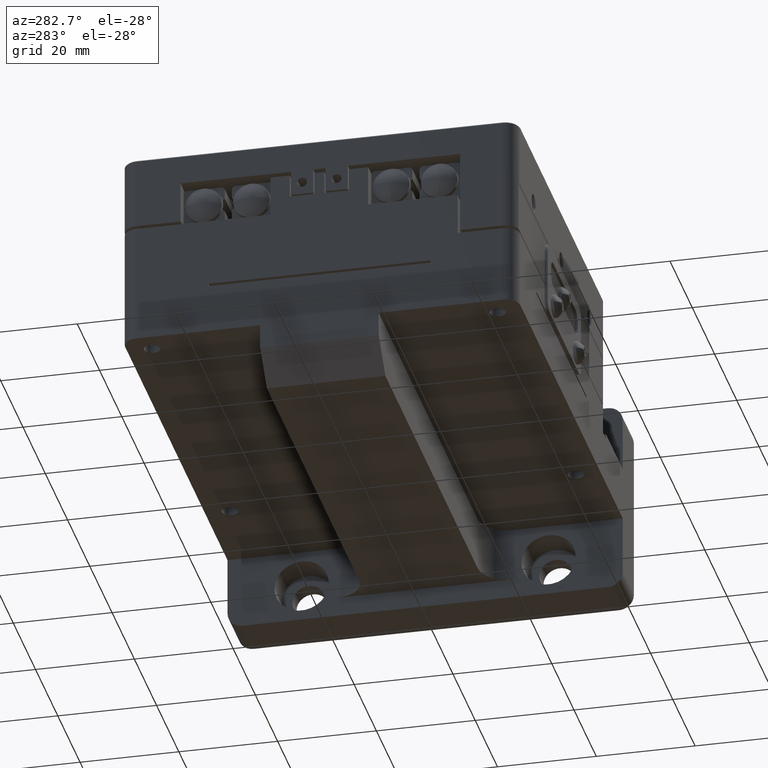
[diagram: clean part render]
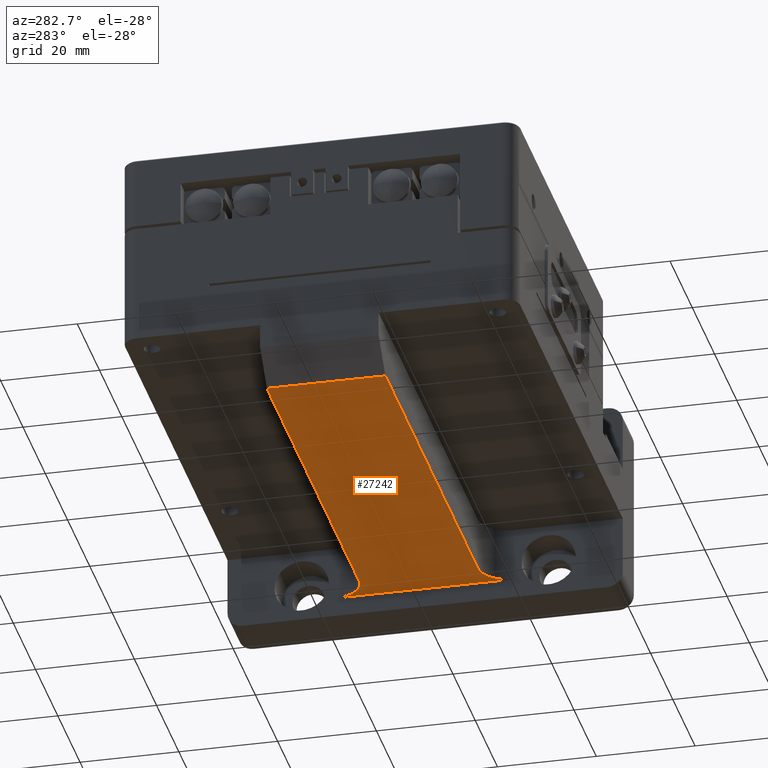
[diagram: same view with one face highlighted and labeled with its STEP entity id]
A machine part, auxiliary view. The second image highlights one B-rep face of the part: STEP entity #27242.
In plain terms, the highlighted planar face has unit normal (-0, 0, 1).
Its self-contained STEP definition (entity closure, byte-faithful):
#635 = AXIS2_PLACEMENT_3D ( 'NONE', #11361, #3087, #19629 ) ;
#2666 = ORIENTED_EDGE ( 'NONE', *, *, #13429, .T. ) ;
#3087 = DIRECTION ( 'NONE',  ( 1.000000000000000000, 2.312964634635740985E-16, -0.000000000000000000 ) ) ;
#3495 = DIRECTION ( 'NONE',  ( 1.000000000000000000, 2.312964634635740985E-16, -0.000000000000000000 ) ) ;
#4759 = DIRECTION ( 'NONE',  ( 1.000000000000000000, 1.460819769243627624E-16, -0.000000000000000000 ) ) ;
#5053 = ORIENTED_EDGE ( 'NONE', *, *, #39371, .T. ) ;
#6030 = LINE ( 'NONE', #52116, #53743 ) ;
#6084 = VERTEX_POINT ( 'NONE', #48886 ) ;
#6743 = LINE ( 'NONE', #27418, #9144 ) ;
#7143 = VERTEX_POINT ( 'NONE', #35405 ) ;
#7940 = VERTEX_POINT ( 'NONE', #30851 ) ;
#8560 = DIRECTION ( 'NONE',  ( -0.000000000000000000, 0.000000000000000000, 1.000000000000000000 ) ) ;
#8903 = FACE_OUTER_BOUND ( 'NONE', #12921, .T. ) ;
#9144 = VECTOR ( 'NONE', #23290, 1000.000000000000000 ) ;
#10091 = VERTEX_POINT ( 'NONE', #52713 ) ;
#10767 = EDGE_CURVE ( 'NONE', #10091, #39506, #52326, .T. ) ;
#11361 = CARTESIAN_POINT ( 'NONE',  ( -16.00000000000000000, 16.00000000000000711, 18.00000000000000711 ) ) ;
#12921 = EDGE_LOOP ( 'NONE', ( #20555, #24731, #2666, #5053, #36713, #45081 ) ) ;
#13429 = EDGE_CURVE ( 'NONE', #7143, #7940, #21724, .T. ) ;
#14266 = DIRECTION ( 'NONE',  ( 0.000000000000000000, -0.000000000000000000, -1.000000000000000000 ) ) ;
#14793 = CARTESIAN_POINT ( 'NONE',  ( -16.00000000000001421, 98.99999999999994316, 40.00000000000000000 ) ) ;
#15995 = EDGE_CURVE ( 'NONE', #21296, #10091, #6030, .T. ) ;
#19079 = EDGE_CURVE ( 'NONE', #6084, #21296, #44641, .T. ) ;
#19629 = DIRECTION ( 'NONE',  ( 0.000000000000000000, -1.000000000000000000, 0.000000000000000000 ) ) ;
#20555 = ORIENTED_EDGE ( 'NONE', *, *, #10767, .T. ) ;
#21296 = VERTEX_POINT ( 'NONE', #22188 ) ;
#21579 = DIRECTION ( 'NONE',  ( -1.460819769243627624E-16, 1.000000000000000000, 0.000000000000000000 ) ) ;
#21724 = CIRCLE ( 'NONE', #53441, 6.000000000000000000 ) ;
#22015 = VECTOR ( 'NONE', #14266, 1000.000000000000000 ) ;
#22188 = CARTESIAN_POINT ( 'NONE',  ( -16.00000000000000000, 16.00000000000002487, 12.00000000000000000 ) ) ;
#23027 = VECTOR ( 'NONE', #8560, 1000.000000000000000 ) ;
#23290 = DIRECTION ( 'NONE',  ( 0.000000000000000000, -1.000000000000000000, -0.000000000000000000 ) ) ;
#24731 = ORIENTED_EDGE ( 'NONE', *, *, #50420, .T. ) ;
#27242 = ADVANCED_FACE ( 'NONE', ( #8903 ), #42542, .F. ) ;
#27418 = CARTESIAN_POINT ( 'NONE',  ( -16.00000000000001421, 0.000000000000000000, -12.00000000000000000 ) ) ;
#30574 = DIRECTION ( 'NONE',  ( 0.000000000000000000, 1.000000000000000000, 0.000000000000000000 ) ) ;
#30851 = CARTESIAN_POINT ( 'NONE',  ( -16.00000000000000000, 10.00000000000000888, -18.00000000000000711 ) ) ;
#33384 = LINE ( 'NONE', #46884, #23027 ) ;
#35405 = CARTESIAN_POINT ( 'NONE',  ( -16.00000000000000711, 16.00000000000000711, -12.00000000000000000 ) ) ;
#36713 = ORIENTED_EDGE ( 'NONE', *, *, #19079, .T. ) ;
#37324 = CARTESIAN_POINT ( 'NONE',  ( -16.00000000000001421, 105.0000000000000000, -30.00000000000000000 ) ) ;
#39371 = EDGE_CURVE ( 'NONE', #7940, #6084, #33384, .T. ) ;
#39506 = VERTEX_POINT ( 'NONE', #48520 ) ;
#42542 = PLANE ( 'NONE',  #48912 ) ;
#44641 = CIRCLE ( 'NONE', #635, 6.000000000000000000 ) ;
#45081 = ORIENTED_EDGE ( 'NONE', *, *, #15995, .T. ) ;
#45151 = DIRECTION ( 'NONE',  ( 0.000000000000000000, -1.000000000000000000, 0.000000000000000000 ) ) ;
#46884 = CARTESIAN_POINT ( 'NONE',  ( -16.00000000000000000, 10.00000000000000888, 12.00000000000000000 ) ) ;
#48520 = CARTESIAN_POINT ( 'NONE',  ( -16.00000000000001066, 98.99999999999995737, -12.00000000000000178 ) ) ;
#48886 = CARTESIAN_POINT ( 'NONE',  ( -16.00000000000000000, 10.00000000000000888, 18.00000000000000711 ) ) ;
#48912 = AXIS2_PLACEMENT_3D ( 'NONE', #37324, #4759, #21579 ) ;
#50420 = EDGE_CURVE ( 'NONE', #39506, #7143, #6743, .T. ) ;
#52116 = CARTESIAN_POINT ( 'NONE',  ( -16.00000000000000355, 0.000000000000000000, 12.00000000000000000 ) ) ;
#52326 = LINE ( 'NONE', #14793, #22015 ) ;
#52713 = CARTESIAN_POINT ( 'NONE',  ( -16.00000000000001066, 98.99999999999992895, 12.00000000000000178 ) ) ;
#53441 = AXIS2_PLACEMENT_3D ( 'NONE', #53719, #3495, #45151 ) ;
#53719 = CARTESIAN_POINT ( 'NONE',  ( -16.00000000000000355, 16.00000000000000711, -18.00000000000000711 ) ) ;
#53743 = VECTOR ( 'NONE', #30574, 1000.000000000000000 ) ;